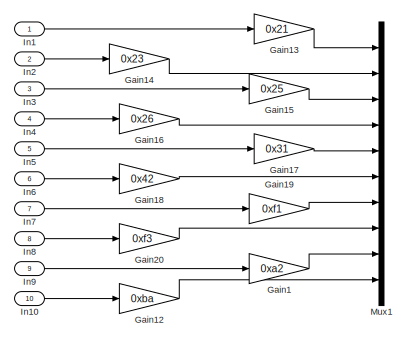
[diagram: root canvas - part 1/3, top left region]
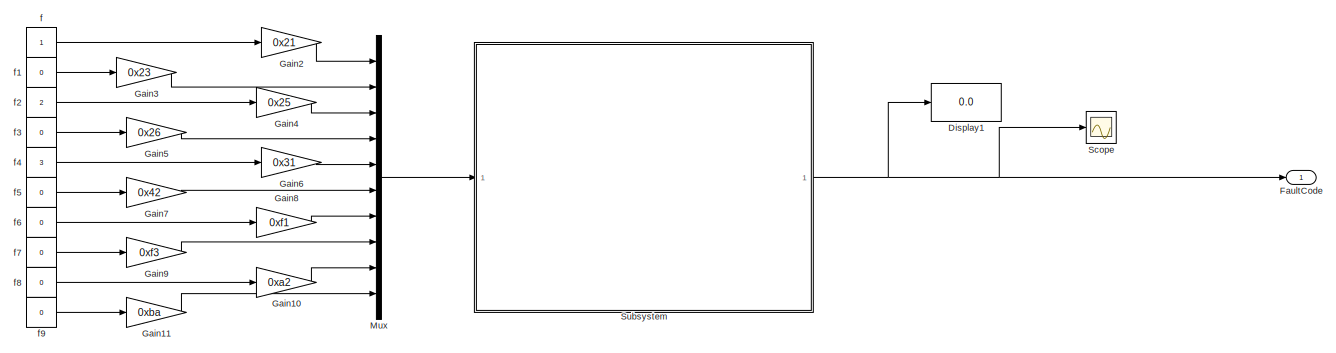
[diagram: root canvas - part 2/3, top right region]
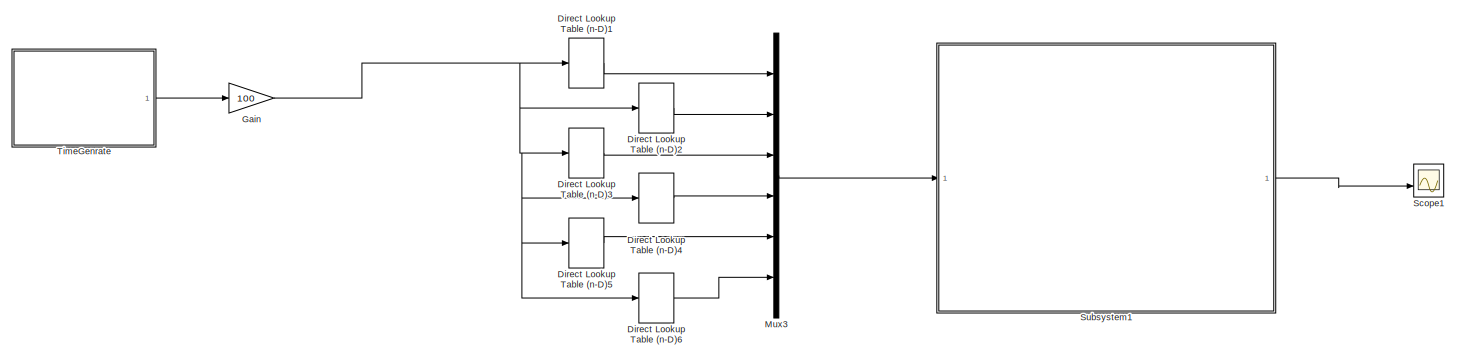
[diagram: root canvas - part 3/3, bottom center region]
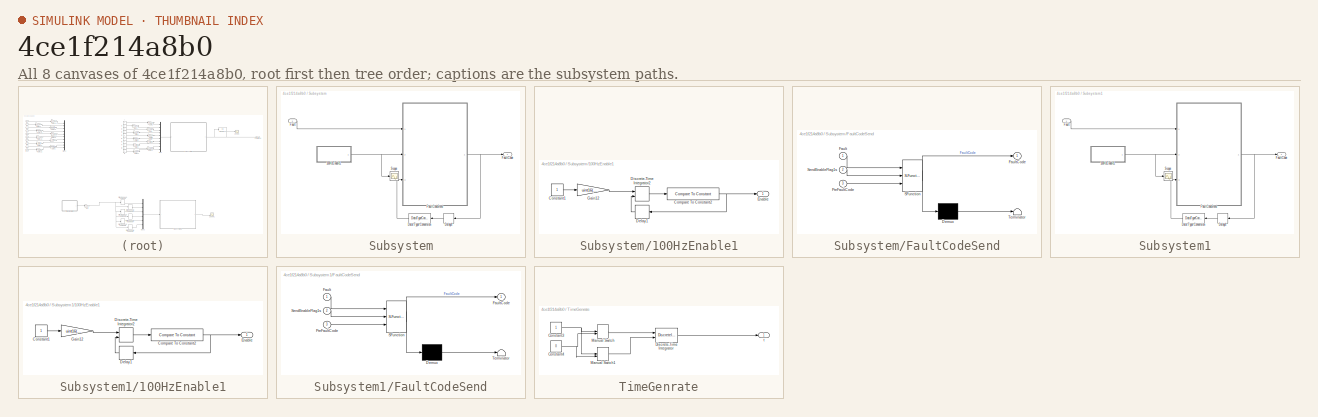
[diagram: thumbnail index - all 8 canvases of the model, root first then tree order]
MODEL slx_4ce1f214a8b0
KIND model
CONFIG AbsTol = auto
CONFIG EnableMultiTasking = off
CONFIG FixedStep = 0.01
CONFIG MaxStep = auto
CONFIG MinStep = auto
CONFIG PostLoadFcn = CCM_Parameter
CONFIG RelTol = 1e-3
CONFIG SampleTimeConstraint = Unconstrained
CONFIG SolverName = ode1
CONFIG StartTime = 0.0
CONFIG StopTime = 15
BLOCK [LookupNDDirect] Direct Lookup Table (n-D)1
  NumberOfTableDimensions = 1
  Ports = [1, 1]
  Table = Fault0x01
BLOCK [LookupNDDirect] Direct Lookup Table (n-D)2
  NumberOfTableDimensions = 1
  Ports = [1, 1]
  Table = Fault0x02
BLOCK [LookupNDDirect] Direct Lookup Table (n-D)3
  NumberOfTableDimensions = 1
  Ports = [1, 1]
  Table = Fault0x03
BLOCK [LookupNDDirect] Direct Lookup Table (n-D)4
  NumberOfTableDimensions = 1
  Ports = [1, 1]
  Table = Fault0x04
BLOCK [LookupNDDirect] Direct Lookup Table (n-D)5
  NumberOfTableDimensions = 1
  Ports = [1, 1]
  Table = Fault0x05
BLOCK [LookupNDDirect] Direct Lookup Table (n-D)6
  NumberOfTableDimensions = 1
  Ports = [1, 1]
  Table = Fault0x06
BLOCK [Display] Display1
  Decimation = 1
  Format = hex (Stored Integer)
  Ports = [1]
BLOCK [Outport] FaultCode
BLOCK [Gain] Gain
  Gain = 100
BLOCK [Gain] Gain1
  Gain = 0xa2
  OutDataTypeStr = uint8
  ParamDataTypeStr = uint8
BLOCK [Gain] Gain10
  Gain = 0xa2
  OutDataTypeStr = uint8
  ParamDataTypeStr = uint8
BLOCK [Gain] Gain11
  Gain = 0xba
  OutDataTypeStr = uint8
  ParamDataTypeStr = uint8
BLOCK [Gain] Gain12
  Gain = 0xba
  OutDataTypeStr = uint8
  ParamDataTypeStr = uint8
BLOCK [Gain] Gain13
  Gain = 0x21
  OutDataTypeStr = uint8
  ParamDataTypeStr = uint8
BLOCK [Gain] Gain14
  Gain = 0x23
  OutDataTypeStr = uint8
  ParamDataTypeStr = uint8
BLOCK [Gain] Gain15
  Gain = 0x25
  OutDataTypeStr = uint8
  ParamDataTypeStr = uint8
BLOCK [Gain] Gain16
  Gain = 0x26
  OutDataTypeStr = uint8
  ParamDataTypeStr = uint8
BLOCK [Gain] Gain17
  Gain = 0x31
  OutDataTypeStr = uint8
  ParamDataTypeStr = uint8
BLOCK [Gain] Gain18
  Gain = 0x42
  OutDataTypeStr = uint8
  ParamDataTypeStr = uint8
BLOCK [Gain] Gain19
  Gain = 0xf1
  OutDataTypeStr = uint8
  ParamDataTypeStr = uint8
BLOCK [Gain] Gain2
  Gain = 0x21
  OutDataTypeStr = uint8
  ParamDataTypeStr = uint8
BLOCK [Gain] Gain20
  Gain = 0xf3
  OutDataTypeStr = uint8
  ParamDataTypeStr = uint8
BLOCK [Gain] Gain3
  Gain = 0x23
  OutDataTypeStr = uint8
  ParamDataTypeStr = uint8
BLOCK [Gain] Gain4
  Gain = 0x25
  OutDataTypeStr = uint8
  ParamDataTypeStr = uint8
BLOCK [Gain] Gain5
  Gain = 0x26
  OutDataTypeStr = uint8
  ParamDataTypeStr = uint8
BLOCK [Gain] Gain6
  Gain = 0x31
  OutDataTypeStr = uint8
  ParamDataTypeStr = uint8
BLOCK [Gain] Gain7
  Gain = 0x42
  OutDataTypeStr = uint8
  ParamDataTypeStr = uint8
BLOCK [Gain] Gain8
  Gain = 0xf1
  OutDataTypeStr = uint8
  ParamDataTypeStr = uint8
BLOCK [Gain] Gain9
  Gain = 0xf3
  OutDataTypeStr = uint8
  ParamDataTypeStr = uint8
BLOCK [Inport] In1
BLOCK [Inport] In10
  Port = 10
BLOCK [Inport] In2
  Port = 2
BLOCK [Inport] In3
  Port = 3
BLOCK [Inport] In4
  Port = 4
BLOCK [Inport] In5
  Port = 5
BLOCK [Inport] In6
  Port = 6
BLOCK [Inport] In7
  Port = 7
BLOCK [Inport] In8
  Port = 8
BLOCK [Inport] In9
  Port = 9
BLOCK [Mux] Mux
  DisplayOption = bar
  Inputs = [1,1,1,1,1,1,1,1,1,1]
  Ports = [10, 1]
BLOCK [Mux] Mux1
  DisplayOption = bar
  Inputs = [1,1,1,1,1,1,1,1,1,1]
  Ports = [10, 1]
BLOCK [Mux] Mux3
  DisplayOption = bar
  Inputs = [1,1,1,1,1,1]
  Ports = [6, 1]
BLOCK [Scope] Scope
  Floating = off
  NumInputPorts = 1
  Ports = [1]
  ScopeSpecificationString = Simulink.scopes.TimeScopeBlockCfg('CurrentConfiguration', extmgr.ConfigurationSet(extmgr.Configuration('Core','General UI',true),extmgr.Configuration('Core','Source UI',true),extmgr.Configuration('Sources','WiredSimulink',true,'DataLoggingVariableName','ScopeData1'),extmgr.Configuration('Visuals','Time Domain',true,'SerializedDisplays',{struct('MinYLimReal','-23.25','MaxYLimReal','209.25','YLabelR...<+1434ch>
BLOCK [Scope] Scope1
  Floating = off
  NumInputPorts = 2
  Ports = [2]
  ScopeSpecificationString = Simulink.scopes.TimeScopeBlockCfg('CurrentConfiguration', extmgr.ConfigurationSet(extmgr.Configuration('Core','General UI',true),extmgr.Configuration('Core','Source UI',true),extmgr.Configuration('Sources','WiredSimulink',true,'DataLoggingVariableName','ScopeData2'),extmgr.Configuration('Visuals','Time Domain',true,'SerializedDisplays',{struct('MinYLimReal','-0.75','MaxYLimReal','6.75','YLabelReal...<+1400ch>
BLOCK [SubSystem] Subsystem
  Ports = [1, 1]
  RequestExecContextInheritance = off
BLOCK [SubSystem] Subsystem/100HzEnable1
  Ports = [0, 1]
  RequestExecContextInheritance = off
BLOCK [Reference] Subsystem/100HzEnable1/Compare To Constant2  REF=simulink/Logic and Bit
Operations/Compare
To Constant
  Ports = [1, 1]
  SourceBlock = simulink/Logic and Bit\nOperations/Compare\nTo Constant
  SourceProductBaseCode = SL
  SourceType = Compare To Constant
BLOCK [Constant] Subsystem/100HzEnable1/Constant1
BLOCK [Delay] Subsystem/100HzEnable1/Delay1
  DelayLength = 1
  InputPortMap = u0
  Ports = [1, 1]
BLOCK [DiscreteIntegrator] Subsystem/100HzEnable1/Discrete-Time Integrator2
  ExternalReset = rising
  ICPrevOutput = DiscIntNeverNeededParam
  ICPrevScaledInput = DiscIntNeverNeededParam
  InitialConditionSetting = Auto
  Ports = [2, 1]
  SampleTime = -1
BLOCK [Outport] Subsystem/100HzEnable1/Enable
BLOCK [Gain] Subsystem/100HzEnable1/Gain12
  Gain = uint16(fre)
BLOCK [DataTypeConversion] Subsystem/Data Type Conversion
  NameLocation = top
  OutDataTypeStr = uint8
  RndMeth = Floor
  SaturateOnIntegerOverflow = off
BLOCK [Delay] Subsystem/Delay4
  DelayLength = 1
  InputPortMap = u0
  Ports = [1, 1]
BLOCK [Inport] Subsystem/Fault
BLOCK [Outport] Subsystem/FaultCode
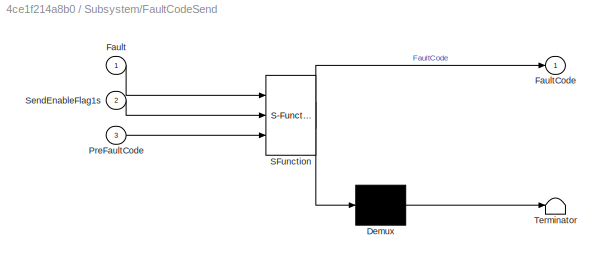
BLOCK [SubSystem] Subsystem/FaultCodeSend
  ErrorFcn = Stateflow.Translate.translate
  PermitHierarchicalResolution = ExplicitOnly
  Ports = [3, 1]
  RequestExecContextInheritance = off
  SFBlockType = MATLAB Function
  TreatAsAtomicUnit = on
BLOCK [Demux] Subsystem/FaultCodeSend/ Demux 
  Outputs = 1
  Ports = [1, 1]
BLOCK [S-Function] Subsystem/FaultCodeSend/ SFunction 
  EnableBusSupport = on
  FunctionName = sf_sfun
  PortCounts = [3 2]
  Ports = [3, 2]
  SFcnIsStateOwnerBlock = off
  SFunctionDeploymentMode = off
  Tag = Stateflow S-Function 2
BLOCK [Terminator] Subsystem/FaultCodeSend/ Terminator 
BLOCK [Inport] Subsystem/FaultCodeSend/Fault
BLOCK [Outport] Subsystem/FaultCodeSend/FaultCode
BLOCK [Inport] Subsystem/FaultCodeSend/PreFaultCode
  Port = 3
BLOCK [Inport] Subsystem/FaultCodeSend/SendEnableFlag1s
  Port = 2
BLOCK [Scope] Subsystem/Scope
  Floating = off
  NumInputPorts = 1
  Ports = [1]
  ScopeSpecificationString = Simulink.scopes.TimeScopeBlockCfg('CurrentConfiguration', extmgr.ConfigurationSet(extmgr.Configuration('Core','General UI',true),extmgr.Configuration('Core','Source UI',true),extmgr.Configuration('Sources','WiredSimulink',true),extmgr.Configuration('Visuals','Time Domain',true,'SerializedDisplays',{struct('MinYLimReal','-0.125','MaxYLimReal','1.125','YLabelReal','','MinYLimMag','0.00000','MaxYLimM...<+1364ch>
BLOCK [SubSystem] Subsystem1
  Ports = [1, 1]
  RequestExecContextInheritance = off
BLOCK [SubSystem] Subsystem1/100HzEnable1
  Ports = [0, 1]
  RequestExecContextInheritance = off
BLOCK [Reference] Subsystem1/100HzEnable1/Compare To Constant2  REF=simulink/Logic and Bit
Operations/Compare
To Constant
  Ports = [1, 1]
  SourceBlock = simulink/Logic and Bit\nOperations/Compare\nTo Constant
  SourceProductBaseCode = SL
  SourceType = Compare To Constant
BLOCK [Constant] Subsystem1/100HzEnable1/Constant1
BLOCK [Delay] Subsystem1/100HzEnable1/Delay1
  DelayLength = 1
  InputPortMap = u0
  Ports = [1, 1]
BLOCK [DiscreteIntegrator] Subsystem1/100HzEnable1/Discrete-Time Integrator2
  ExternalReset = rising
  ICPrevOutput = DiscIntNeverNeededParam
  ICPrevScaledInput = DiscIntNeverNeededParam
  InitialConditionSetting = Auto
  Ports = [2, 1]
  SampleTime = -1
BLOCK [Outport] Subsystem1/100HzEnable1/Enable
BLOCK [Gain] Subsystem1/100HzEnable1/Gain12
  Gain = uint16(fre)
BLOCK [DataTypeConversion] Subsystem1/Data Type Conversion
  NameLocation = top
  OutDataTypeStr = uint8
  RndMeth = Floor
  SaturateOnIntegerOverflow = off
BLOCK [Delay] Subsystem1/Delay4
  DelayLength = 1
  InputPortMap = u0
  Ports = [1, 1]
BLOCK [Inport] Subsystem1/Fault
BLOCK [Outport] Subsystem1/FaultCode
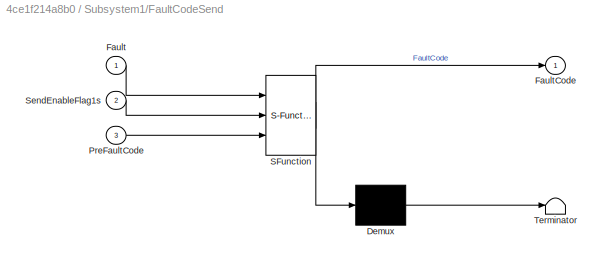
BLOCK [SubSystem] Subsystem1/FaultCodeSend
  ErrorFcn = Stateflow.Translate.translate
  PermitHierarchicalResolution = ExplicitOnly
  Ports = [3, 1]
  RequestExecContextInheritance = off
  SFBlockType = MATLAB Function
  TreatAsAtomicUnit = on
BLOCK [Demux] Subsystem1/FaultCodeSend/ Demux 
  Outputs = 1
  Ports = [1, 1]
BLOCK [S-Function] Subsystem1/FaultCodeSend/ SFunction 
  EnableBusSupport = on
  FunctionName = sf_sfun
  PortCounts = [3 2]
  Ports = [3, 2]
  SFcnIsStateOwnerBlock = off
  SFunctionDeploymentMode = off
  Tag = Stateflow S-Function 1
BLOCK [Terminator] Subsystem1/FaultCodeSend/ Terminator 
BLOCK [Inport] Subsystem1/FaultCodeSend/Fault
BLOCK [Outport] Subsystem1/FaultCodeSend/FaultCode
BLOCK [Inport] Subsystem1/FaultCodeSend/PreFaultCode
  Port = 3
BLOCK [Inport] Subsystem1/FaultCodeSend/SendEnableFlag1s
  Port = 2
BLOCK [Scope] Subsystem1/Scope
  Floating = off
  NumInputPorts = 1
  Ports = [1]
  ScopeSpecificationString = Simulink.scopes.TimeScopeBlockCfg('CurrentConfiguration', extmgr.ConfigurationSet(extmgr.Configuration('Core','General UI',true),extmgr.Configuration('Core','Source UI',true),extmgr.Configuration('Sources','WiredSimulink',true),extmgr.Configuration('Visuals','Time Domain',true,'SerializedDisplays',{struct('MinYLimReal','-0.125','MaxYLimReal','1.125','YLabelReal','','MinYLimMag','0.00000','MaxYLimM...<+1364ch>
BLOCK [SubSystem] TimeGenrate
  Ports = [0, 1]
  RequestExecContextInheritance = off
BLOCK [Constant] TimeGenrate/Constant3
BLOCK [Constant] TimeGenrate/Constant4
  Value = 0
BLOCK [DiscreteIntegrator] TimeGenrate/Discrete-Time Integrator
  ExternalReset = either
  ICPrevOutput = DiscIntNeverNeededParam
  ICPrevScaledInput = DiscIntNeverNeededParam
  InitialConditionSetting = Auto
  Ports = [2, 1]
  SampleTime = -1
BLOCK [ManualSwitch] TimeGenrate/Manual Switch
BLOCK [ManualSwitch] TimeGenrate/Manual Switch1
BLOCK [Outport] TimeGenrate/t
BLOCK [Constant] f
  OutDataTypeStr = uint8
BLOCK [Constant] f1
  OutDataTypeStr = uint8
  Value = 0
BLOCK [Constant] f2
  OutDataTypeStr = uint8
  Value = 2
BLOCK [Constant] f3
  OutDataTypeStr = uint8
  Value = 0
BLOCK [Constant] f4
  OutDataTypeStr = uint8
  Value = 3
BLOCK [Constant] f5
  OutDataTypeStr = uint8
  Value = 0
BLOCK [Constant] f6
  OutDataTypeStr = uint8
  Value = 0
BLOCK [Constant] f7
  OutDataTypeStr = uint8
  Value = 0
BLOCK [Constant] f8
  OutDataTypeStr = uint8
  Value = 0
BLOCK [Constant] f9
  OutDataTypeStr = uint8
  Value = 0
LINE Direct Lookup Table (n-D)1:1 -> Mux3:1
LINE Direct Lookup Table (n-D)2:1 -> Mux3:2
LINE Direct Lookup Table (n-D)3:1 -> Mux3:3
LINE Direct Lookup Table (n-D)4:1 -> Mux3:4
LINE Direct Lookup Table (n-D)5:1 -> Mux3:5
LINE Direct Lookup Table (n-D)6:1 -> Mux3:6
LINE Gain10:1 -> Mux:9
LINE Gain11:1 -> Mux:10
LINE Gain12:1 -> Mux1:10
LINE Gain13:1 -> Mux1:1
LINE Gain14:1 -> Mux1:2
LINE Gain15:1 -> Mux1:3
LINE Gain16:1 -> Mux1:4
LINE Gain17:1 -> Mux1:5
LINE Gain18:1 -> Mux1:6
LINE Gain19:1 -> Mux1:7
LINE Gain1:1 -> Mux1:9
LINE Gain20:1 -> Mux1:8
LINE Gain2:1 -> Mux:1
LINE Gain3:1 -> Mux:2
LINE Gain4:1 -> Mux:3
LINE Gain5:1 -> Mux:4
LINE Gain6:1 -> Mux:5
LINE Gain7:1 -> Mux:6
LINE Gain8:1 -> Mux:7
LINE Gain9:1 -> Mux:8
NET Gain:1 -> Direct Lookup Table (n-D)1:1, Direct Lookup Table (n-D)2:1, Direct Lookup Table (n-D)3:1, Direct Lookup Table (n-D)4:1, Direct Lookup Table (n-D)5:1, Direct Lookup Table (n-D)6:1
LINE In10:1 -> Gain12:1
LINE In1:1 -> Gain13:1
LINE In2:1 -> Gain14:1
LINE In3:1 -> Gain15:1
LINE In4:1 -> Gain16:1
LINE In5:1 -> Gain17:1
LINE In6:1 -> Gain18:1
LINE In7:1 -> Gain19:1
LINE In8:1 -> Gain20:1
LINE In9:1 -> Gain1:1
LINE Mux3:1 -> Subsystem1:1
LINE Mux:1 -> Subsystem:1
NET Subsystem/100HzEnable1/Compare To Constant2:1 -> Subsystem/100HzEnable1/Delay1:1, Subsystem/100HzEnable1/Enable:1
LINE Subsystem/100HzEnable1/Constant1:1 -> Subsystem/100HzEnable1/Gain12:1
LINE Subsystem/100HzEnable1/Delay1:1 -> Subsystem/100HzEnable1/Discrete-Time Integrator2:2
LINE Subsystem/100HzEnable1/Discrete-Time Integrator2:1 -> Subsystem/100HzEnable1/Compare To Constant2:1
LINE Subsystem/100HzEnable1/Gain12:1 -> Subsystem/100HzEnable1/Discrete-Time Integrator2:1
NET Subsystem/100HzEnable1:1 -> Subsystem/FaultCodeSend:2, Subsystem/Scope:1
LINE Subsystem/Data Type Conversion:1 -> Subsystem/FaultCodeSend:3
LINE Subsystem/Delay4:1 -> Subsystem/Data Type Conversion:1
LINE Subsystem/Fault:1 -> Subsystem/FaultCodeSend:1
NET Subsystem/FaultCodeSend:1 -> Subsystem/Delay4:1, Subsystem/FaultCode:1
NET Subsystem1/100HzEnable1/Compare To Constant2:1 -> Subsystem1/100HzEnable1/Delay1:1, Subsystem1/100HzEnable1/Enable:1
LINE Subsystem1/100HzEnable1/Constant1:1 -> Subsystem1/100HzEnable1/Gain12:1
LINE Subsystem1/100HzEnable1/Delay1:1 -> Subsystem1/100HzEnable1/Discrete-Time Integrator2:2
LINE Subsystem1/100HzEnable1/Discrete-Time Integrator2:1 -> Subsystem1/100HzEnable1/Compare To Constant2:1
LINE Subsystem1/100HzEnable1/Gain12:1 -> Subsystem1/100HzEnable1/Discrete-Time Integrator2:1
NET Subsystem1/100HzEnable1:1 -> Subsystem1/FaultCodeSend:2, Subsystem1/Scope:1
LINE Subsystem1/Data Type Conversion:1 -> Subsystem1/FaultCodeSend:3
LINE Subsystem1/Delay4:1 -> Subsystem1/Data Type Conversion:1
LINE Subsystem1/Fault:1 -> Subsystem1/FaultCodeSend:1
NET Subsystem1/FaultCodeSend:1 -> Subsystem1/Delay4:1, Subsystem1/FaultCode:1
LINE Subsystem1:1 -> Scope1:2
NET Subsystem:1 -> Display1:1, FaultCode:1, Scope:1
NET TimeGenrate/Constant3:1 -> TimeGenrate/Manual Switch1:1, TimeGenrate/Manual Switch:1
NET TimeGenrate/Constant4:1 -> TimeGenrate/Manual Switch1:2, TimeGenrate/Manual Switch:2
LINE TimeGenrate/Discrete-Time Integrator:1 -> TimeGenrate/t:1
LINE TimeGenrate/Manual Switch1:1 -> TimeGenrate/Discrete-Time Integrator:2
LINE TimeGenrate/Manual Switch:1 -> TimeGenrate/Discrete-Time Integrator:1
LINE TimeGenrate:1 -> Gain:1
LINE f1:1 -> Gain3:1
LINE f2:1 -> Gain4:1
LINE f3:1 -> Gain5:1
LINE f4:1 -> Gain6:1
LINE f5:1 -> Gain7:1
LINE f6:1 -> Gain8:1
LINE f7:1 -> Gain9:1
LINE f8:1 -> Gain10:1
LINE f9:1 -> Gain11:1
LINE f:1 -> Gain2:1
note: NET lines group one-source signal fan-out (src -> all destinations, sorted); 1:1 wires keep LINE
CHART Subsystem1/FaultCodeSend states=1 transitions=1
  STATE_LABEL 'eML_blk_kernel()'
  STATE_LABEL 'SCRIPT:\nfunction FaultCode = fcn(Fault,SendEnableFlag1s,PreFaultCode)\n\n%% 赋初值\npersistent Temp               %% 错误缓存区\npersistent cannum             %% 错误发送位\npersistent WriteEnableFlag    %% 清除错误码\n\n    if isempty(cannum)\n        cannum = 0;\n    end\n\n    if isempty(WriteEnableFlag)\n        WriteEnableFlag = zeros(length(Fault),1);\n    end\n\n%% 更新缓存区\n     if isempty(Temp)\n         Temp = Fault; % \n    ...<+1064ch>'
CHART Subsystem/FaultCodeSend states=1 transitions=1
  STATE_LABEL 'eML_blk_kernel()'
  STATE_LABEL 'SCRIPT:\nfunction FaultCode = fcn(Fault,SendEnableFlag1s,PreFaultCode)\n\n%% 赋初值\npersistent Temp               %% 错误缓存区\npersistent cannum             %% 错误发送位\npersistent WriteEnableFlag    %% 清除错误码\n\n    if isempty(cannum)\n        cannum = 0;\n    end\n\n    if isempty(WriteEnableFlag)\n        WriteEnableFlag = zeros(length(Fault),1);\n    end\n\n%% 更新缓存区\n     if isempty(Temp)\n         Temp = Fault; % \n    ...<+1064ch>'
CHART  states=0 transitions=0
CHART  states=0 transitions=0
